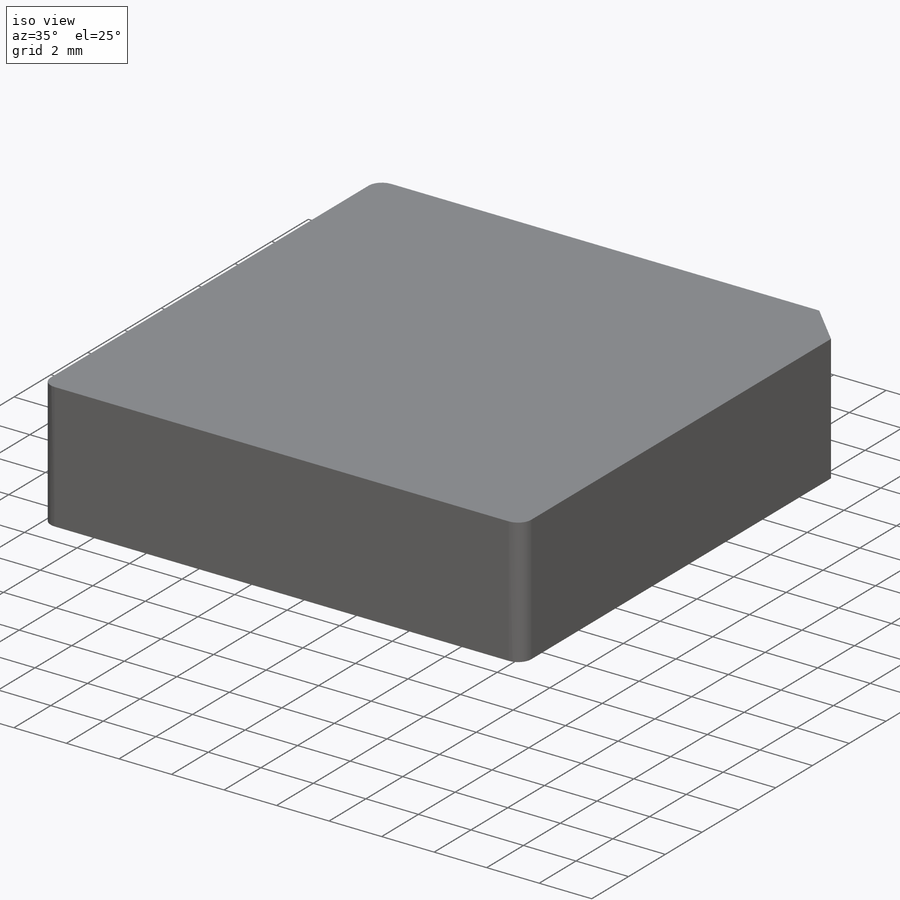
[diagram: iso view]
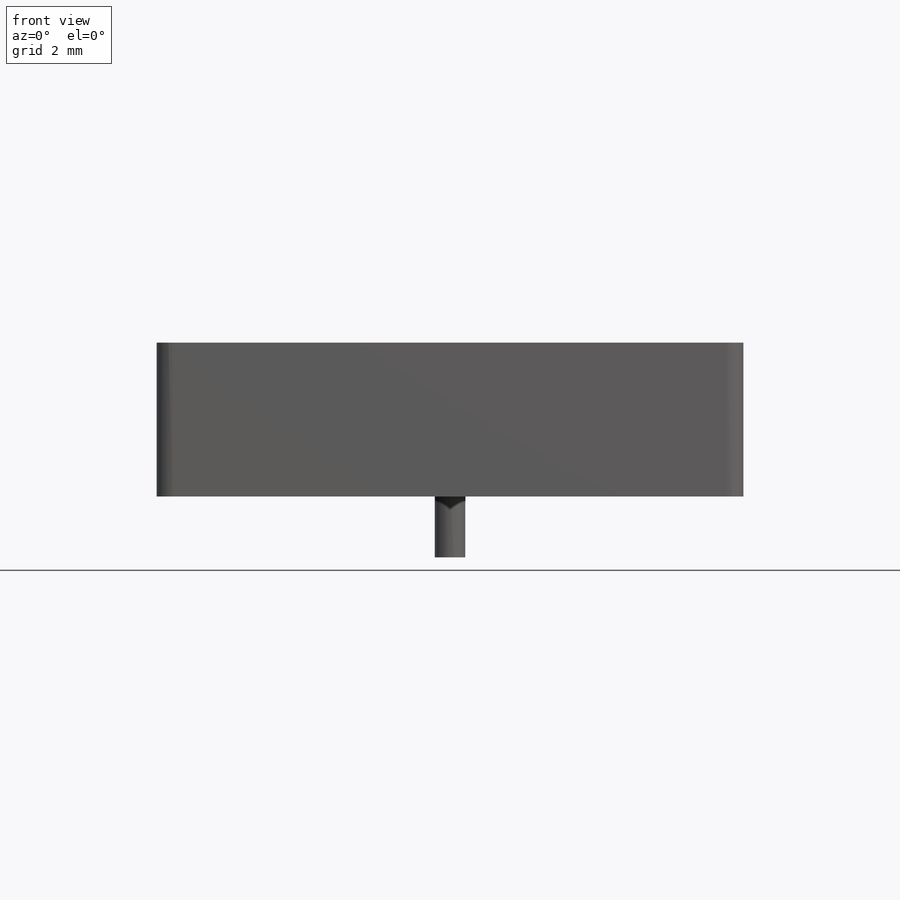
[diagram: front view]
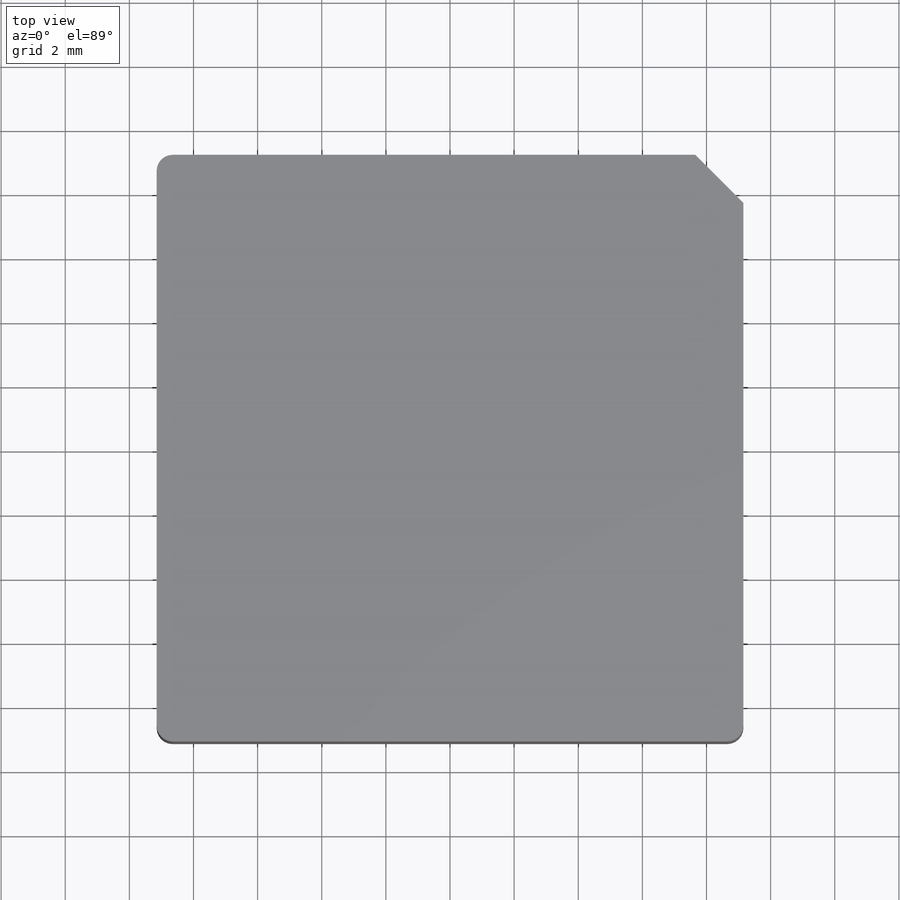
[diagram: top view]
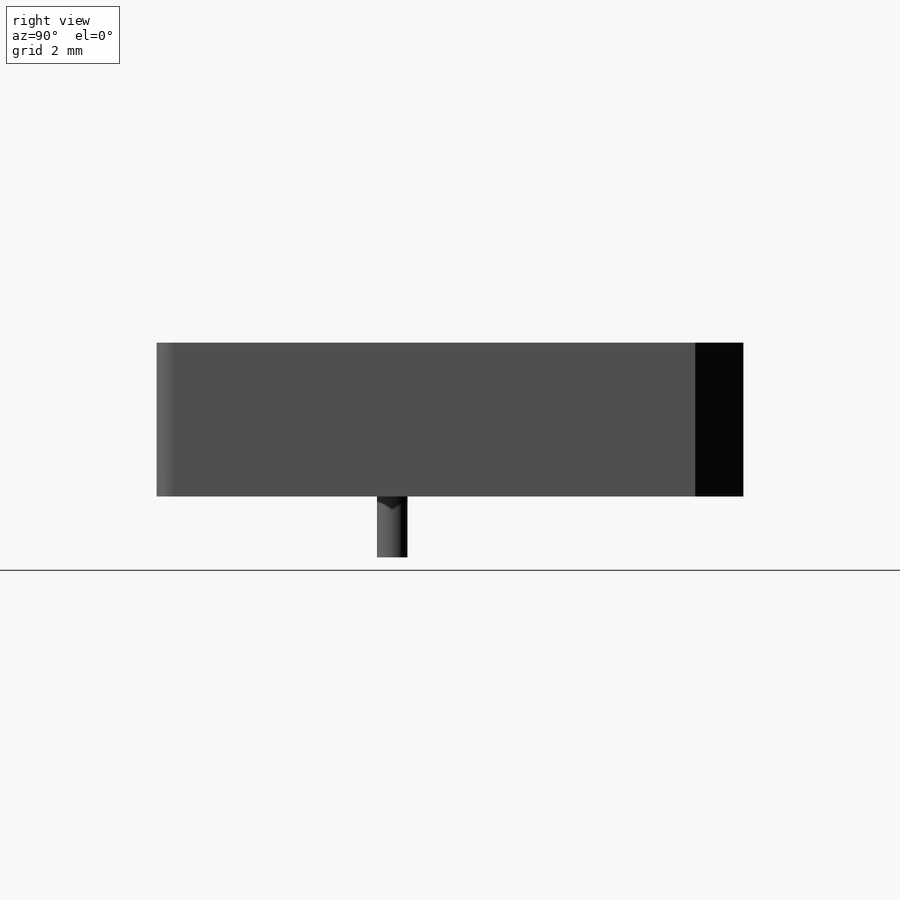
[diagram: right view]
SOLIDWORKS PART (.sldprt)
format: sldprt  version: not decoded by parser v0  size: 114,688 bytes
history: native  units: mm
features: sketch x2, extrude x2, material x1, fillet x1 (+11 scaffold rows collapsed)
feature tree (17):
  scaffold x11  (default folders/planes/origin — collapsed)
  material  "Material <not specified>"
  sketch  "Sketch1"  dims[D1=18.3mm D2=18.3mm D3=1.5mm]
  extrude  "Boss-Extrude1"  Depth=4.8mm
  fillet  "Fillet1"  Radius=0.5mm
  sketch  "Sketch2"  dims[D2=0.95mm D1=1.8mm]
  extrude  "Boss-Extrude2"  Depth=1.9mm
decode coverage: 5 of 5 modeling features carry decoded parameters
note: suppression state not decoded; provenance and decode notes live in map.json
